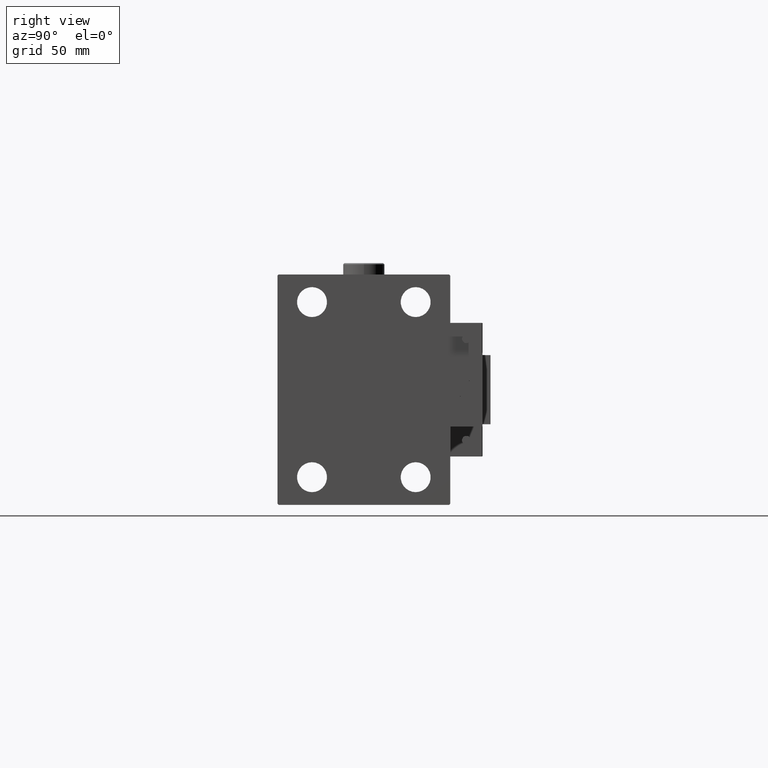
[diagram: clean part render]
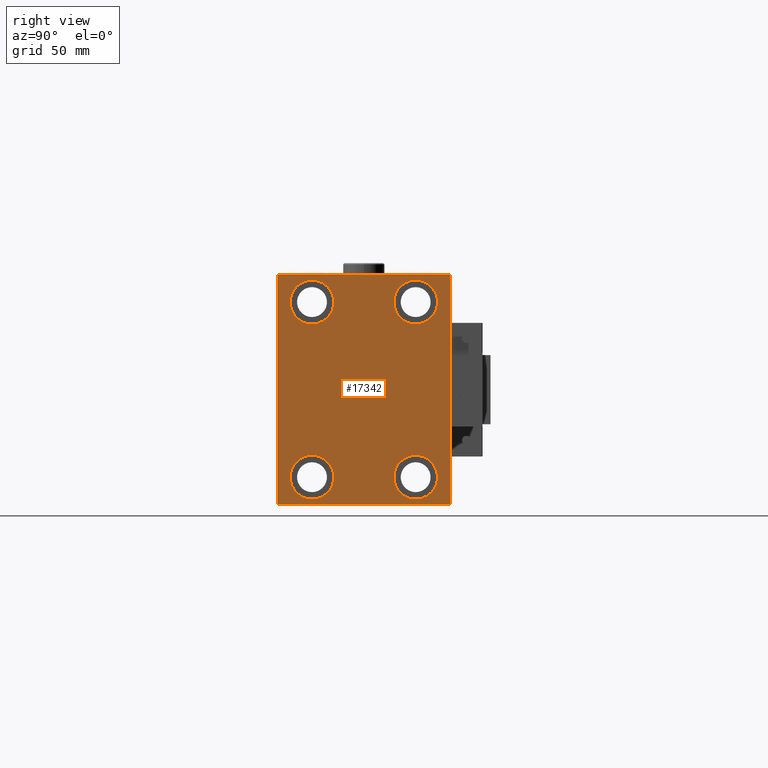
[diagram: same view with one face highlighted and labeled with its STEP entity id]
A machine part, right view. The second image highlights one B-rep face of the part: STEP entity #17342.
In plain terms, the highlighted planar face has unit normal (1, 0, 0).
Its self-contained STEP definition (entity closure, byte-faithful):
#7 = VERTEX_POINT ( 'NONE', #41116 ) ;
#98 = VECTOR ( 'NONE', #30657, 1000.000000000000000 ) ;
#238 = CARTESIAN_POINT ( 'NONE',  ( 133.0000000000000000, 22.50000000000000355, 37.99999999999999289 ) ) ;
#377 = DIRECTION ( 'NONE',  ( 0.000000000000000000, 0.000000000000000000, -1.000000000000000000 ) ) ;
#506 = CARTESIAN_POINT ( 'NONE',  ( 133.0000000000000000, 36.99999999999997868, -50.00000000000000000 ) ) ;
#701 = AXIS2_PLACEMENT_3D ( 'NONE', #20501, #11944, #29559 ) ;
#818 = ORIENTED_EDGE ( 'NONE', *, *, #47273, .T. ) ;
#1046 = CARTESIAN_POINT ( 'NONE',  ( 133.0000000000000000, 37.50000000000000711, -49.49999999999997158 ) ) ;
#1154 = ORIENTED_EDGE ( 'NONE', *, *, #20716, .T. ) ;
#1986 = CARTESIAN_POINT ( 'NONE',  ( 133.0000000000000000, 22.50000000000000355, 37.99999999999999289 ) ) ;
#2077 = DIRECTION ( 'NONE',  ( -0.000000000000000000, 0.7071067811865474617, -0.7071067811865474617 ) ) ;
#2945 = EDGE_CURVE ( 'NONE', #37804, #24139, #20500, .T. ) ;
#3481 = ORIENTED_EDGE ( 'NONE', *, *, #40605, .T. ) ;
#4007 = DIRECTION ( 'NONE',  ( 0.000000000000000000, -1.000000000000000000, -1.850371707708594316E-16 ) ) ;
#4231 = FACE_BOUND ( 'NONE', #5593, .T. ) ;
#4301 = VERTEX_POINT ( 'NONE', #54354 ) ;
#4671 = ORIENTED_EDGE ( 'NONE', *, *, #21053, .T. ) ;
#5163 = VERTEX_POINT ( 'NONE', #53318 ) ;
#5175 = LINE ( 'NONE', #17325, #14028 ) ;
#5538 = VECTOR ( 'NONE', #4007, 1000.000000000000000 ) ;
#5593 = EDGE_LOOP ( 'NONE', ( #4671, #17619 ) ) ;
#5614 = ORIENTED_EDGE ( 'NONE', *, *, #33289, .T. ) ;
#5700 = CIRCLE ( 'NONE', #29462, 9.500000000000001776 ) ;
#6601 = VERTEX_POINT ( 'NONE', #32245 ) ;
#7064 = ORIENTED_EDGE ( 'NONE', *, *, #22711, .T. ) ;
#7338 = ORIENTED_EDGE ( 'NONE', *, *, #9500, .T. ) ;
#7582 = DIRECTION ( 'NONE',  ( -1.000000000000000000, -0.000000000000000000, -0.000000000000000000 ) ) ;
#7592 = CARTESIAN_POINT ( 'NONE',  ( 133.0000000000000000, -22.49999999999999645, 37.99999999999999289 ) ) ;
#7923 = VECTOR ( 'NONE', #21014, 1000.000000000000000 ) ;
#8432 = AXIS2_PLACEMENT_3D ( 'NONE', #38375, #53341, #32411 ) ;
#8639 = FACE_BOUND ( 'NONE', #42432, .T. ) ;
#8902 = CARTESIAN_POINT ( 'NONE',  ( 133.0000000000000000, 0.000000000000000000, 0.000000000000000000 ) ) ;
#9500 = EDGE_CURVE ( 'NONE', #4301, #6601, #12683, .T. ) ;
#11032 = VECTOR ( 'NONE', #45355, 1000.000000000000114 ) ;
#11322 = CIRCLE ( 'NONE', #701, 9.500000000000001776 ) ;
#11664 = VERTEX_POINT ( 'NONE', #54106 ) ;
#11944 = DIRECTION ( 'NONE',  ( -1.000000000000000000, -0.000000000000000000, -0.000000000000000000 ) ) ;
#12020 = VERTEX_POINT ( 'NONE', #45235 ) ;
#12099 = CIRCLE ( 'NONE', #19166, 9.500000000000001776 ) ;
#12520 = DIRECTION ( 'NONE',  ( 0.000000000000000000, 0.000000000000000000, 1.000000000000000000 ) ) ;
#12683 = CIRCLE ( 'NONE', #43485, 9.500000000000001776 ) ;
#12802 = CARTESIAN_POINT ( 'NONE',  ( 133.0000000000000000, -22.50000000000000711, -37.99999999999999289 ) ) ;
#13042 = FACE_BOUND ( 'NONE', #35106, .T. ) ;
#13162 = EDGE_LOOP ( 'NONE', ( #818, #1154, #34561, #19112, #3481, #44570, #7064, #32874 ) ) ;
#13623 = CARTESIAN_POINT ( 'NONE',  ( 133.0000000000000000, -37.50000000000000711, 49.99999999999999289 ) ) ;
#13644 = EDGE_CURVE ( 'NONE', #24139, #37804, #32201, .T. ) ;
#13845 = VERTEX_POINT ( 'NONE', #44419 ) ;
#14028 = VECTOR ( 'NONE', #34126, 1000.000000000000000 ) ;
#14396 = CARTESIAN_POINT ( 'NONE',  ( 133.0000000000000000, -37.50000000000000711, -50.00000000000000711 ) ) ;
#14670 = DIRECTION ( 'NONE',  ( 0.000000000000000000, 0.000000000000000000, 1.000000000000000000 ) ) ;
#15113 = AXIS2_PLACEMENT_3D ( 'NONE', #32859, #41129, #37540 ) ;
#15850 = CARTESIAN_POINT ( 'NONE',  ( 133.0000000000000000, -22.49999999999999645, 47.49999999999999289 ) ) ;
#15881 = ORIENTED_EDGE ( 'NONE', *, *, #13644, .T. ) ;
#16666 = EDGE_CURVE ( 'NONE', #50086, #31950, #12099, .T. ) ;
#16689 = LINE ( 'NONE', #41491, #11032 ) ;
#17325 = CARTESIAN_POINT ( 'NONE',  ( 133.0000000000000000, 37.50000000000000711, -50.00000000000000000 ) ) ;
#17342 = ADVANCED_FACE ( 'NONE', ( #4231, #13042, #8639, #21056, #30119 ), #26254, .T. ) ;
#17619 = ORIENTED_EDGE ( 'NONE', *, *, #44927, .T. ) ;
#17650 = EDGE_LOOP ( 'NONE', ( #45808, #7338 ) ) ;
#18347 = CARTESIAN_POINT ( 'NONE',  ( 133.0000000000000000, -43.50000000000002132, -43.50000000000002132 ) ) ;
#18809 = VERTEX_POINT ( 'NONE', #1046 ) ;
#19112 = ORIENTED_EDGE ( 'NONE', *, *, #23118, .T. ) ;
#19166 = AXIS2_PLACEMENT_3D ( 'NONE', #1986, #31741, #14670 ) ;
#20500 = CIRCLE ( 'NONE', #34557, 9.500000000000001776 ) ;
#20501 = CARTESIAN_POINT ( 'NONE',  ( 133.0000000000000000, 22.49999999999999645, -37.99999999999999289 ) ) ;
#20716 = EDGE_CURVE ( 'NONE', #5163, #7, #48463, .T. ) ;
#21014 = DIRECTION ( 'NONE',  ( -0.000000000000000000, -0.7071067811865426878, 0.7071067811865524577 ) ) ;
#21053 = EDGE_CURVE ( 'NONE', #12020, #11664, #11322, .T. ) ;
#21056 = FACE_BOUND ( 'NONE', #17650, .T. ) ;
#21218 = DIRECTION ( 'NONE',  ( 0.000000000000000000, 0.000000000000000000, 1.000000000000000000 ) ) ;
#21321 = DIRECTION ( 'NONE',  ( 1.000000000000000000, 0.000000000000000000, 0.000000000000000000 ) ) ;
#21868 = AXIS2_PLACEMENT_3D ( 'NONE', #8902, #21321, #38404 ) ;
#22583 = CARTESIAN_POINT ( 'NONE',  ( 133.0000000000000000, 37.49999999999999289, 49.49999999999997158 ) ) ;
#22665 = ORIENTED_EDGE ( 'NONE', *, *, #16666, .T. ) ;
#22711 = EDGE_CURVE ( 'NONE', #18809, #27000, #5175, .T. ) ;
#22929 = CARTESIAN_POINT ( 'NONE',  ( 133.0000000000000000, 36.99999999999996447, 50.00000000000000711 ) ) ;
#23118 = EDGE_CURVE ( 'NONE', #13845, #40465, #39293, .T. ) ;
#24139 = VERTEX_POINT ( 'NONE', #15850 ) ;
#24542 = DIRECTION ( 'NONE',  ( -1.000000000000000000, -0.000000000000000000, -0.000000000000000000 ) ) ;
#24681 = EDGE_CURVE ( 'NONE', #27000, #35373, #38898, .T. ) ;
#25230 = CARTESIAN_POINT ( 'NONE',  ( 133.0000000000000000, 37.49999999999999289, 50.00000000000000711 ) ) ;
#25944 = CARTESIAN_POINT ( 'NONE',  ( 133.0000000000000000, 43.50000000000024158, 43.49999999999963762 ) ) ;
#25960 = VERTEX_POINT ( 'NONE', #506 ) ;
#26254 = PLANE ( 'NONE',  #21868 ) ;
#27000 = VERTEX_POINT ( 'NONE', #22583 ) ;
#27799 = CARTESIAN_POINT ( 'NONE',  ( 133.0000000000000000, -43.49999999999998579, 43.49999999999998579 ) ) ;
#29184 = CIRCLE ( 'NONE', #15113, 9.500000000000001776 ) ;
#29462 = AXIS2_PLACEMENT_3D ( 'NONE', #35907, #52969, #52709 ) ;
#29559 = DIRECTION ( 'NONE',  ( 0.000000000000000000, 0.000000000000000000, 1.000000000000000000 ) ) ;
#30119 = FACE_OUTER_BOUND ( 'NONE', #13162, .T. ) ;
#30657 = DIRECTION ( 'NONE',  ( 0.000000000000000000, 1.000000000000000000, 9.251858538542970348E-17 ) ) ;
#30834 = DIRECTION ( 'NONE',  ( 0.000000000000000000, -0.7071067811865474617, -0.7071067811865474617 ) ) ;
#31741 = DIRECTION ( 'NONE',  ( -1.000000000000000000, -0.000000000000000000, -0.000000000000000000 ) ) ;
#31950 = VERTEX_POINT ( 'NONE', #48855 ) ;
#32128 = DIRECTION ( 'NONE',  ( 0.000000000000000000, 0.000000000000000000, 1.000000000000000000 ) ) ;
#32201 = CIRCLE ( 'NONE', #8432, 9.500000000000001776 ) ;
#32245 = CARTESIAN_POINT ( 'NONE',  ( 133.0000000000000000, -22.50000000000000711, -47.49999999999999289 ) ) ;
#32411 = DIRECTION ( 'NONE',  ( 0.000000000000000000, 0.000000000000000000, 1.000000000000000000 ) ) ;
#32859 = CARTESIAN_POINT ( 'NONE',  ( 133.0000000000000000, 22.49999999999999645, -37.99999999999999289 ) ) ;
#32874 = ORIENTED_EDGE ( 'NONE', *, *, #24681, .T. ) ;
#33289 = EDGE_CURVE ( 'NONE', #31950, #50086, #45937, .T. ) ;
#34126 = DIRECTION ( 'NONE',  ( 0.000000000000000000, -1.387778780781445676E-16, 1.000000000000000000 ) ) ;
#34557 = AXIS2_PLACEMENT_3D ( 'NONE', #7592, #35985, #32128 ) ;
#34561 = ORIENTED_EDGE ( 'NONE', *, *, #37119, .T. ) ;
#34567 = CARTESIAN_POINT ( 'NONE',  ( 133.0000000000000000, -22.49999999999999645, 28.49999999999998934 ) ) ;
#35106 = EDGE_LOOP ( 'NONE', ( #35902, #15881 ) ) ;
#35373 = VERTEX_POINT ( 'NONE', #22929 ) ;
#35902 = ORIENTED_EDGE ( 'NONE', *, *, #2945, .T. ) ;
#35907 = CARTESIAN_POINT ( 'NONE',  ( 133.0000000000000000, -22.50000000000000711, -37.99999999999999289 ) ) ;
#35985 = DIRECTION ( 'NONE',  ( -1.000000000000000000, -0.000000000000000000, -0.000000000000000000 ) ) ;
#37119 = EDGE_CURVE ( 'NONE', #7, #13845, #51354, .T. ) ;
#37327 = CARTESIAN_POINT ( 'NONE',  ( 133.0000000000000000, 22.50000000000000355, 47.49999999999999289 ) ) ;
#37540 = DIRECTION ( 'NONE',  ( 0.000000000000000000, 0.000000000000000000, 1.000000000000000000 ) ) ;
#37636 = LINE ( 'NONE', #25230, #5538 ) ;
#37780 = VECTOR ( 'NONE', #2077, 1000.000000000000114 ) ;
#37804 = VERTEX_POINT ( 'NONE', #34567 ) ;
#38375 = CARTESIAN_POINT ( 'NONE',  ( 133.0000000000000000, -22.49999999999999645, 37.99999999999999289 ) ) ;
#38404 = DIRECTION ( 'NONE',  ( 0.000000000000000000, 0.000000000000000000, -1.000000000000000000 ) ) ;
#38535 = EDGE_CURVE ( 'NONE', #25960, #18809, #16689, .T. ) ;
#38898 = LINE ( 'NONE', #25944, #7923 ) ;
#39293 = LINE ( 'NONE', #18347, #37780 ) ;
#40465 = VERTEX_POINT ( 'NONE', #43882 ) ;
#40605 = EDGE_CURVE ( 'NONE', #40465, #25960, #44159, .T. ) ;
#41116 = CARTESIAN_POINT ( 'NONE',  ( 133.0000000000000000, -37.50000000000000711, 49.49999999999996447 ) ) ;
#41129 = DIRECTION ( 'NONE',  ( -1.000000000000000000, -0.000000000000000000, -0.000000000000000000 ) ) ;
#41217 = VECTOR ( 'NONE', #30834, 1000.000000000000114 ) ;
#41491 = CARTESIAN_POINT ( 'NONE',  ( 133.0000000000000000, 43.49999999999998579, -43.49999999999998579 ) ) ;
#42432 = EDGE_LOOP ( 'NONE', ( #5614, #22665 ) ) ;
#43323 = AXIS2_PLACEMENT_3D ( 'NONE', #238, #24542, #21218 ) ;
#43485 = AXIS2_PLACEMENT_3D ( 'NONE', #12802, #7582, #12520 ) ;
#43882 = CARTESIAN_POINT ( 'NONE',  ( 133.0000000000000000, -37.00000000000003553, -50.00000000000000711 ) ) ;
#44159 = LINE ( 'NONE', #14396, #98 ) ;
#44419 = CARTESIAN_POINT ( 'NONE',  ( 133.0000000000000000, -37.50000000000000711, -49.50000000000003553 ) ) ;
#44570 = ORIENTED_EDGE ( 'NONE', *, *, #38535, .T. ) ;
#44927 = EDGE_CURVE ( 'NONE', #11664, #12020, #29184, .T. ) ;
#45235 = CARTESIAN_POINT ( 'NONE',  ( 133.0000000000000000, 22.49999999999999645, -47.49999999999999289 ) ) ;
#45355 = DIRECTION ( 'NONE',  ( -0.000000000000000000, 0.7071067811865474617, 0.7071067811865474617 ) ) ;
#45808 = ORIENTED_EDGE ( 'NONE', *, *, #51322, .T. ) ;
#45937 = CIRCLE ( 'NONE', #43323, 9.500000000000001776 ) ;
#47273 = EDGE_CURVE ( 'NONE', #35373, #5163, #37636, .T. ) ;
#48463 = LINE ( 'NONE', #27799, #41217 ) ;
#48855 = CARTESIAN_POINT ( 'NONE',  ( 133.0000000000000000, 22.50000000000000355, 28.49999999999998934 ) ) ;
#50086 = VERTEX_POINT ( 'NONE', #37327 ) ;
#51322 = EDGE_CURVE ( 'NONE', #6601, #4301, #5700, .T. ) ;
#51354 = LINE ( 'NONE', #13623, #52274 ) ;
#52274 = VECTOR ( 'NONE', #377, 1000.000000000000000 ) ;
#52709 = DIRECTION ( 'NONE',  ( 0.000000000000000000, 0.000000000000000000, 1.000000000000000000 ) ) ;
#52969 = DIRECTION ( 'NONE',  ( -1.000000000000000000, -0.000000000000000000, -0.000000000000000000 ) ) ;
#53318 = CARTESIAN_POINT ( 'NONE',  ( 133.0000000000000000, -36.99999999999997868, 49.99999999999999289 ) ) ;
#53341 = DIRECTION ( 'NONE',  ( -1.000000000000000000, -0.000000000000000000, -0.000000000000000000 ) ) ;
#54106 = CARTESIAN_POINT ( 'NONE',  ( 133.0000000000000000, 22.49999999999999645, -28.49999999999998934 ) ) ;
#54354 = CARTESIAN_POINT ( 'NONE',  ( 133.0000000000000000, -22.50000000000000711, -28.49999999999998934 ) ) ;